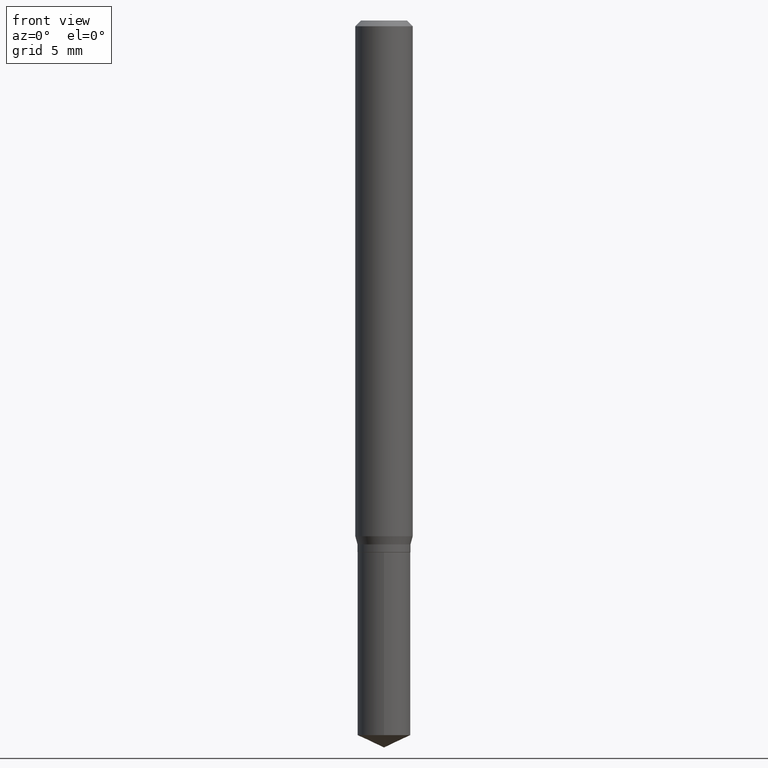
[diagram: clean part render]
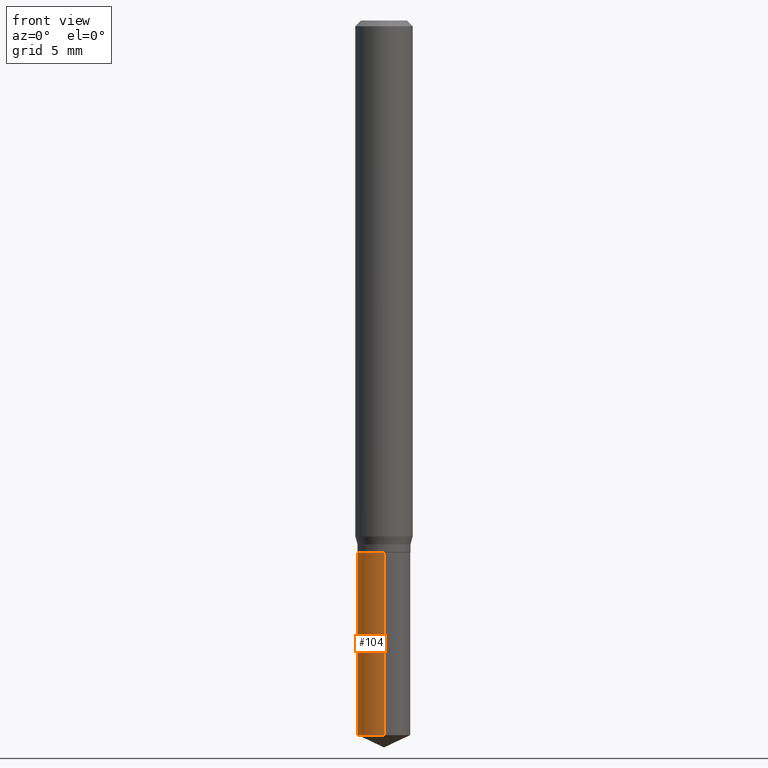
[diagram: same view with one face highlighted and labeled with its STEP entity id]
A machine part, front view. The second image highlights one B-rep face of the part: STEP entity #104.
In plain terms, the highlighted cylindrical surface (edge-blend (fillet) strip) has radius 1.3856 mm, axis along (-0, 0, 1).
Its self-contained STEP definition (entity closure, byte-faithful):
#37 = CARTESIAN_POINT ( 'NONE',  ( -3.809206140677591118E-16, -0.05455000000000382460, -1.094499999999999806 ) ) ;
#56 = VERTEX_POINT ( 'NONE', #258 ) ;
#60 = CARTESIAN_POINT ( 'NONE',  ( 2.676565608369631794E-29, -3.821426325363822773E-15, -1.094499999999999806 ) ) ;
#77 = CARTESIAN_POINT ( 'NONE',  ( 2.676565608369631794E-29, -3.821426325363822773E-15, -1.094499999999999806 ) ) ;
#79 = CARTESIAN_POINT ( 'NONE',  ( -3.809206140677498427E-16, -0.05455000000000512217, -1.470662917247644863 ) ) ;
#82 = DIRECTION ( 'NONE',  ( -6.982962677686265922E-15, -1.000000000000000000, 2.503985328748179054E-15 ) ) ;
#93 = CARTESIAN_POINT ( 'NONE',  ( 3.876010623571613830E-16, 0.05454999999999617794, -1.094500000000000028 ) ) ;
#100 = ORIENTED_EDGE ( 'NONE', *, *, #320, .T. ) ;
#104 = ADVANCED_FACE ( 'NONE', ( #107 ), #147, .T. ) ;
#107 = FACE_OUTER_BOUND ( 'NONE', #321, .T. ) ;
#109 = AXIS2_PLACEMENT_3D ( 'NONE', #319, #134, #278 ) ;
#112 = DIRECTION ( 'NONE',  ( -6.982962677686265922E-15, -1.000000000000000000, 2.503985328748179054E-15 ) ) ;
#133 = VERTEX_POINT ( 'NONE', #459 ) ;
#134 = DIRECTION ( 'NONE',  ( -2.445458899330790108E-29, 3.491495526022433205E-15, 1.000000000000000000 ) ) ;
#145 = VERTEX_POINT ( 'NONE', #79 ) ;
#147 = CYLINDRICAL_SURFACE ( 'NONE', #457, 0.05455000000000000127 ) ;
#156 = CIRCLE ( 'NONE', #431, 0.05455000000000000127 ) ;
#157 = EDGE_CURVE ( 'NONE', #133, #385, #156, .T. ) ;
#160 = EDGE_CURVE ( 'NONE', #56, #133, #200, .T. ) ;
#191 = CIRCLE ( 'NONE', #109, 0.05455000000000000127 ) ;
#200 = LINE ( 'NONE', #93, #217 ) ;
#209 = ORIENTED_EDGE ( 'NONE', *, *, #266, .T. ) ;
#217 = VECTOR ( 'NONE', #429, 39.37007874015748143 ) ;
#253 = ORIENTED_EDGE ( 'NONE', *, *, #160, .F. ) ;
#258 = CARTESIAN_POINT ( 'NONE',  ( 3.876010623571705043E-16, 0.05454999999999486648, -1.470662917247645307 ) ) ;
#266 = EDGE_CURVE ( 'NONE', #56, #145, #191, .T. ) ;
#278 = DIRECTION ( 'NONE',  ( -6.982962677686265922E-15, -1.000000000000000000, 5.007970657496358109E-15 ) ) ;
#311 = DIRECTION ( 'NONE',  ( -2.445458899330790108E-29, 3.491495526022433599E-15, 1.000000000000000000 ) ) ;
#319 = CARTESIAN_POINT ( 'NONE',  ( 3.596456561951116999E-29, -5.134797467989521124E-15, -1.470662917247645085 ) ) ;
#320 = EDGE_CURVE ( 'NONE', #145, #385, #356, .T. ) ;
#321 = EDGE_LOOP ( 'NONE', ( #253, #209, #100, #359 ) ) ;
#356 = LINE ( 'NONE', #37, #461 ) ;
#359 = ORIENTED_EDGE ( 'NONE', *, *, #157, .F. ) ;
#385 = VERTEX_POINT ( 'NONE', #433 ) ;
#425 = DIRECTION ( 'NONE',  ( -2.445458899330790108E-29, 3.491495526022433205E-15, 1.000000000000000000 ) ) ;
#429 = DIRECTION ( 'NONE',  ( -2.445458899330790108E-29, 3.491495526022433599E-15, 1.000000000000000000 ) ) ;
#431 = AXIS2_PLACEMENT_3D ( 'NONE', #77, #425, #82 ) ;
#433 = CARTESIAN_POINT ( 'NONE',  ( -3.809206140677591118E-16, -0.05455000000000382460, -1.094499999999999806 ) ) ;
#453 = DIRECTION ( 'NONE',  ( -2.445458899330790108E-29, 3.491495526022433205E-15, 1.000000000000000000 ) ) ;
#457 = AXIS2_PLACEMENT_3D ( 'NONE', #60, #453, #112 ) ;
#459 = CARTESIAN_POINT ( 'NONE',  ( 3.876010623571706522E-16, 0.05454999999999618487, -1.094500000000000028 ) ) ;
#461 = VECTOR ( 'NONE', #311, 39.37007874015748143 ) ;